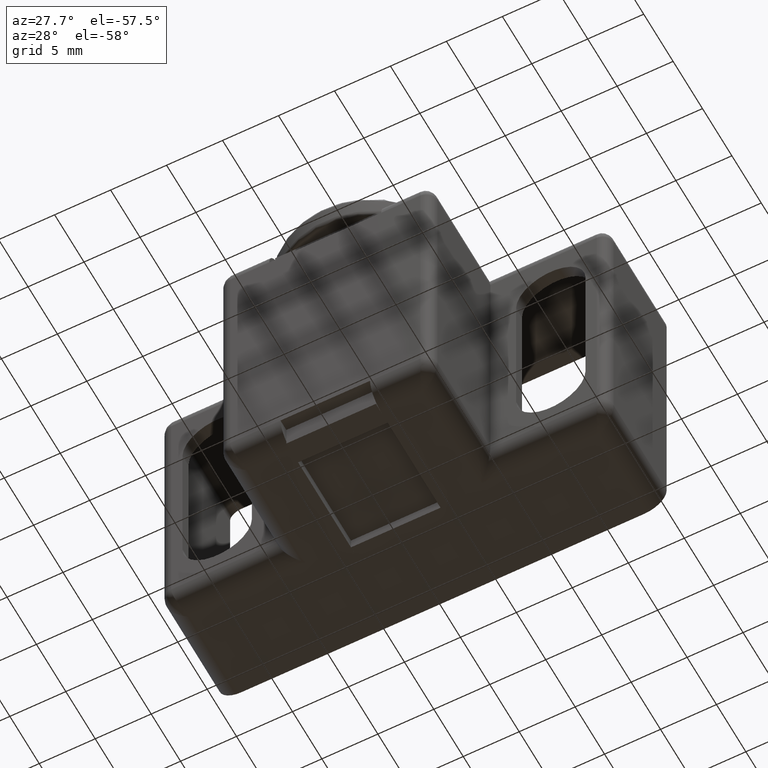
[diagram: clean part render]
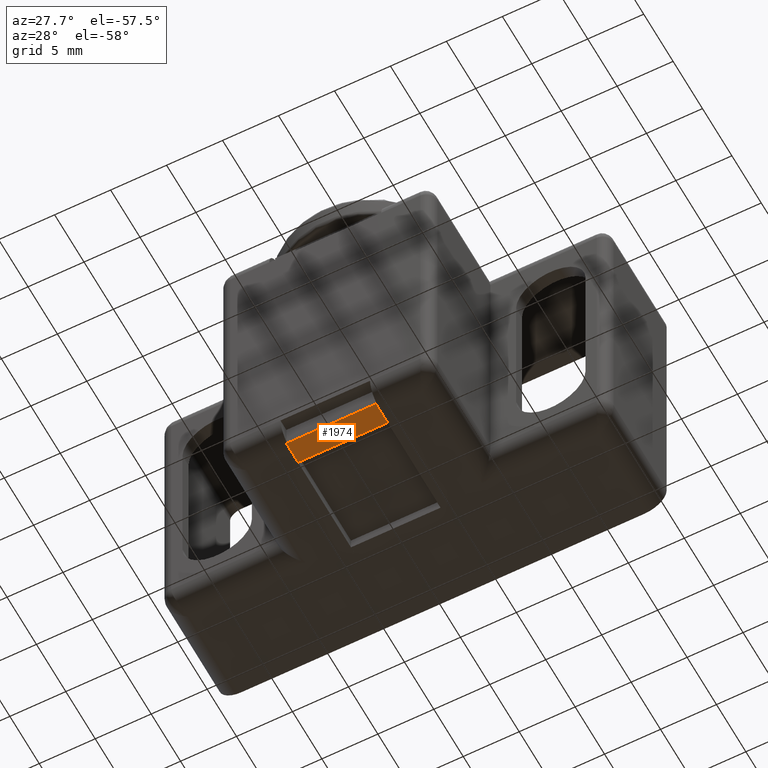
[diagram: same view with one face highlighted and labeled with its STEP entity id]
A machine part, auxiliary view. The second image highlights one B-rep face of the part: STEP entity #1974.
In plain terms, the highlighted planar face has unit normal (-0, -0, -1).
Its self-contained STEP definition (entity closure, byte-faithful):
#262=FACE_OUTER_BOUND('',#389,.T.);
#389=EDGE_LOOP('',(#1747,#1748,#1749,#1750));
#587=LINE('',#4319,#783);
#590=LINE('',#4325,#786);
#593=LINE('',#4331,#789);
#595=LINE('',#4334,#791);
#783=VECTOR('',#2645,2.);
#786=VECTOR('',#2650,7.99999999999998);
#789=VECTOR('',#2655,2.);
#791=VECTOR('',#2659,7.99999999999998);
#964=VERTEX_POINT('',#4316);
#965=VERTEX_POINT('',#4318);
#967=VERTEX_POINT('',#4324);
#969=VERTEX_POINT('',#4330);
#1227=EDGE_CURVE('',#965,#964,#587,.T.);
#1230=EDGE_CURVE('',#967,#965,#590,.T.);
#1233=EDGE_CURVE('',#969,#967,#593,.T.);
#1235=EDGE_CURVE('',#964,#969,#595,.T.);
#1747=ORIENTED_EDGE('',*,*,#1235,.T.);
#1748=ORIENTED_EDGE('',*,*,#1233,.T.);
#1749=ORIENTED_EDGE('',*,*,#1230,.T.);
#1750=ORIENTED_EDGE('',*,*,#1227,.T.);
#1858=PLANE('',#2150);
#1974=ADVANCED_FACE('',(#262),#1858,.T.);
#2150=AXIS2_PLACEMENT_3D('',#4333,#2657,#2658);
#2645=DIRECTION('',(0.,-1.,0.));
#2650=DIRECTION('',(1.,-1.38777878078145E-016,0.));
#2655=DIRECTION('',(0.,1.,0.));
#2657=DIRECTION('center_axis',(0.,0.,-1.));
#2658=DIRECTION('ref_axis',(-1.,0.,0.));
#2659=DIRECTION('',(-1.,0.,0.));
#4316=CARTESIAN_POINT('',(12.5000042180761,0.,-1.));
#4318=CARTESIAN_POINT('',(12.5000042180761,2.,-1.));
#4319=CARTESIAN_POINT('',(12.5000042180761,2.,-1.));
#4324=CARTESIAN_POINT('',(4.50000421807616,2.,-1.));
#4325=CARTESIAN_POINT('',(4.50000421807616,2.,-1.));
#4330=CARTESIAN_POINT('',(4.50000421807616,0.,-1.));
#4331=CARTESIAN_POINT('',(4.50000421807616,0.,-1.));
#4333=CARTESIAN_POINT('Origin',(8.50000421807616,1.,-1.));
#4334=CARTESIAN_POINT('',(12.5000042180761,0.,-1.));